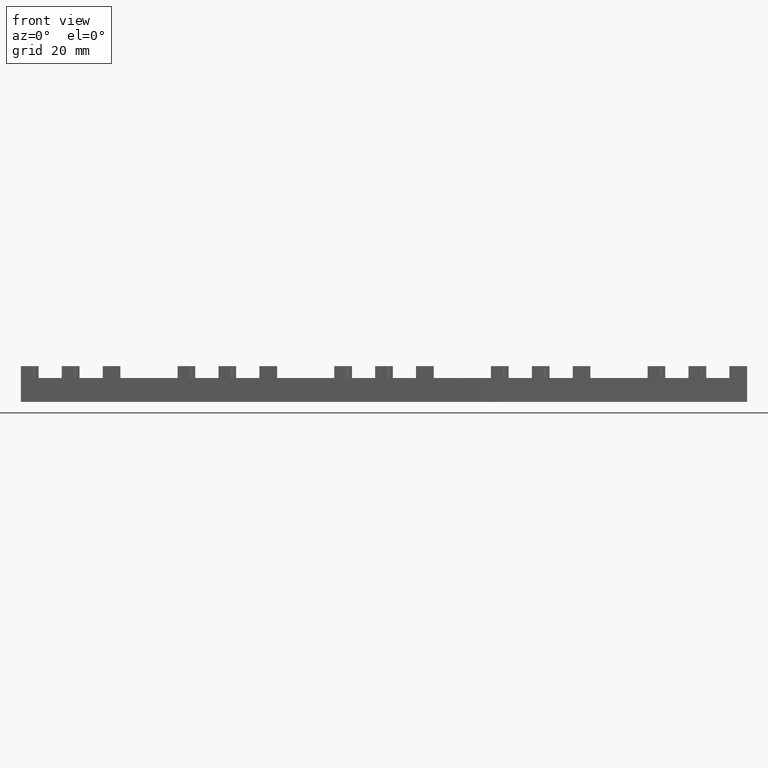
[diagram: clean part render]
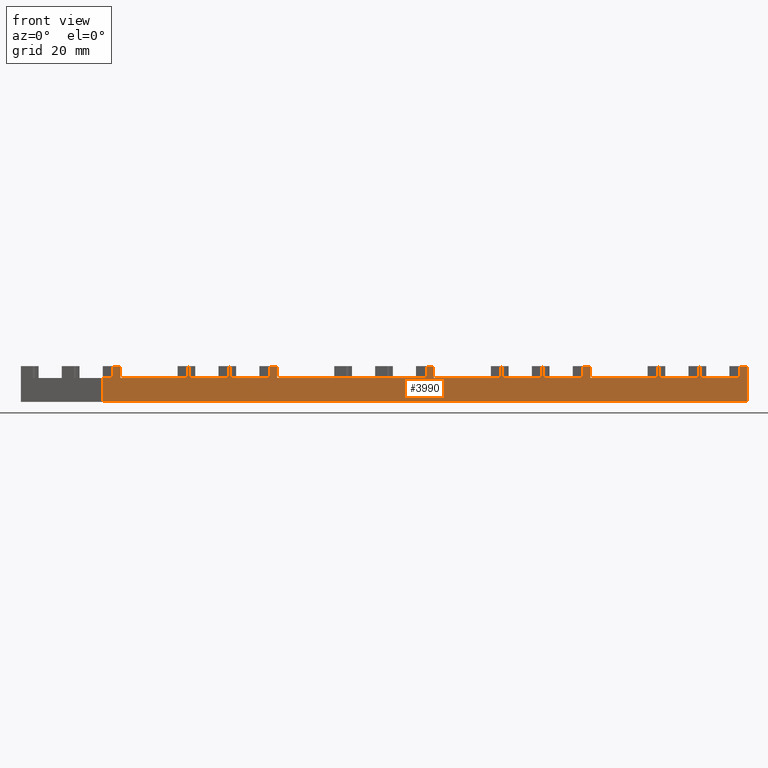
[diagram: same view with one face highlighted and labeled with its STEP entity id]
A machine part, front view. The second image highlights one B-rep face of the part: STEP entity #3990.
In plain terms, the highlighted planar face has unit normal (0, 1, 0).
Its self-contained STEP definition (entity closure, byte-faithful):
#313=CARTESIAN_POINT('',(57.499999999999893,-12.200000000000104,112.30000000000004));
#314=VERTEX_POINT('',#313);
#331=CARTESIAN_POINT('',(57.499999999999893,-12.200000000000104,108.20000000000005));
#332=VERTEX_POINT('',#331);
#339=CARTESIAN_POINT('',(57.499999999999893,-12.200000000000104,108.20000000000005));
#340=DIRECTION('',(0.0,0.0,1.0));
#341=VECTOR('',#340,4.099999999999994);
#342=LINE('',#339,#341);
#343=EDGE_CURVE('',#332,#314,#342,.T.);
#400=CARTESIAN_POINT('',(53.999999999999844,-12.200000000000049,108.20000000000005));
#401=VERTEX_POINT('',#400);
#527=CARTESIAN_POINT('',(57.999999999999901,-12.199999999999878,112.30000000000004));
#528=VERTEX_POINT('',#527);
#535=CARTESIAN_POINT('',(57.999999999999901,-12.199999999999878,108.20000000000005));
#536=VERTEX_POINT('',#535);
#537=CARTESIAN_POINT('',(57.999999999999901,-12.199999999999878,108.20000000000005));
#538=DIRECTION('',(0.0,0.0,1.0));
#539=VECTOR('',#538,4.099999999999994);
#540=LINE('',#537,#539);
#541=EDGE_CURVE('',#536,#528,#540,.T.);
#558=CARTESIAN_POINT('',(57.999999999999893,-12.199999999999877,112.30000000000004));
#559=DIRECTION('',(-1.0,-4.547474E-013,0.0));
#560=VECTOR('',#559,0.5);
#561=LINE('',#558,#560);
#562=EDGE_CURVE('',#528,#314,#561,.T.);
#585=CARTESIAN_POINT('',(53.999999999999829,-12.200000000000049,108.20000000000003));
#586=DIRECTION('',(1.0,0.0,0.0));
#587=VECTOR('',#586,3.500000000000057);
#588=LINE('',#585,#587);
#589=EDGE_CURVE('',#401,#332,#588,.T.);
#676=CARTESIAN_POINT('',(34.299999999999621,-12.20000000000792,108.20000000000005));
#677=VERTEX_POINT('',#676);
#684=CARTESIAN_POINT('',(34.299999999999613,-12.200000000000049,108.20000000000003));
#685=DIRECTION('',(1.0,0.0,0.0));
#686=VECTOR('',#685,19.700000000000216);
#687=LINE('',#684,#686);
#688=EDGE_CURVE('',#677,#401,#687,.T.);
#740=CARTESIAN_POINT('',(72.099999999999696,-12.200000000000104,112.30000000000004));
#741=VERTEX_POINT('',#740);
#748=CARTESIAN_POINT('',(72.099999999999696,-12.200000000000104,108.20000000000005));
#749=VERTEX_POINT('',#748);
#750=CARTESIAN_POINT('',(72.099999999999696,-12.200000000000104,108.20000000000005));
#751=DIRECTION('',(0.0,0.0,1.0));
#752=VECTOR('',#751,4.099999999999994);
#753=LINE('',#750,#752);
#754=EDGE_CURVE('',#749,#741,#753,.T.);
#771=CARTESIAN_POINT('',(71.599999999999923,-12.200000000000104,112.30000000000004));
#772=VERTEX_POINT('',#771);
#789=CARTESIAN_POINT('',(71.599999999999923,-12.200000000000104,108.20000000000005));
#790=VERTEX_POINT('',#789);
#797=CARTESIAN_POINT('',(71.599999999999923,-12.200000000000104,108.20000000000005));
#798=DIRECTION('',(0.0,0.0,1.0));
#799=VECTOR('',#798,4.099999999999994);
#800=LINE('',#797,#799);
#801=EDGE_CURVE('',#790,#772,#800,.T.);
#858=CARTESIAN_POINT('',(68.099999999999696,-12.200000000000049,108.20000000000005));
#859=VERTEX_POINT('',#858);
#972=CARTESIAN_POINT('',(72.099999999999696,-12.200000000000104,112.30000000000004));
#973=DIRECTION('',(-1.0,0.0,0.0));
#974=VECTOR('',#973,0.499999999999773);
#975=LINE('',#972,#974);
#976=EDGE_CURVE('',#741,#772,#975,.T.);
#987=CARTESIAN_POINT('',(68.099999999999682,-12.200000000000049,108.20000000000003));
#988=DIRECTION('',(1.0,0.0,0.0));
#989=VECTOR('',#988,3.500000000000227);
#990=LINE('',#987,#989);
#991=EDGE_CURVE('',#859,#790,#990,.T.);
#1004=CARTESIAN_POINT('',(111.49999999999991,-12.200000000000104,112.30000000000004));
#1005=VERTEX_POINT('',#1004);
#1022=CARTESIAN_POINT('',(111.49999999999991,-12.200000000000104,108.20000000000005));
#1023=VERTEX_POINT('',#1022);
#1030=CARTESIAN_POINT('',(111.49999999999991,-12.200000000000104,108.20000000000005));
#1031=DIRECTION('',(0.0,0.0,1.0));
#1032=VECTOR('',#1031,4.099999999999994);
#1033=LINE('',#1030,#1032);
#1034=EDGE_CURVE('',#1023,#1005,#1033,.T.);
#1091=CARTESIAN_POINT('',(107.99999999999984,-12.200000000000049,108.20000000000005));
#1092=VERTEX_POINT('',#1091);
#1218=CARTESIAN_POINT('',(111.9999999999999,-12.199999999999878,112.30000000000004));
#1219=VERTEX_POINT('',#1218);
#1226=CARTESIAN_POINT('',(111.9999999999999,-12.199999999999878,108.20000000000005));
#1227=VERTEX_POINT('',#1226);
#1228=CARTESIAN_POINT('',(111.9999999999999,-12.199999999999878,108.20000000000005));
#1229=DIRECTION('',(0.0,0.0,1.0));
#1230=VECTOR('',#1229,4.099999999999994);
#1231=LINE('',#1228,#1230);
#1232=EDGE_CURVE('',#1227,#1219,#1231,.T.);
#1249=CARTESIAN_POINT('',(111.99999999999991,-12.199999999999877,112.30000000000004));
#1250=DIRECTION('',(-1.0,-4.547474E-013,0.0));
#1251=VECTOR('',#1250,0.5);
#1252=LINE('',#1249,#1251);
#1253=EDGE_CURVE('',#1219,#1005,#1252,.T.);
#1276=CARTESIAN_POINT('',(107.99999999999984,-12.200000000000049,108.20000000000003));
#1277=DIRECTION('',(1.0,0.0,0.0));
#1278=VECTOR('',#1277,3.500000000000057);
#1279=LINE('',#1276,#1278);
#1280=EDGE_CURVE('',#1092,#1023,#1279,.T.);
#1294=CARTESIAN_POINT('',(57.999999999999886,-12.200000000000049,108.20000000000003));
#1295=DIRECTION('',(1.0,0.0,0.0));
#1296=VECTOR('',#1295,10.099999999999795);
#1297=LINE('',#1294,#1296);
#1298=EDGE_CURVE('',#536,#859,#1297,.T.);
#1306=CARTESIAN_POINT('',(82.199999999999591,-12.200000000000049,108.20000000000005));
#1307=VERTEX_POINT('',#1306);
#1308=CARTESIAN_POINT('',(72.099999999999682,-12.200000000000049,108.20000000000003));
#1309=DIRECTION('',(1.0,0.0,0.0));
#1310=VECTOR('',#1309,10.099999999999909);
#1311=LINE('',#1308,#1310);
#1312=EDGE_CURVE('',#749,#1307,#1311,.T.);
#1330=CARTESIAN_POINT('',(88.299999999999628,-12.20000000000792,108.20000000000005));
#1331=VERTEX_POINT('',#1330);
#1338=CARTESIAN_POINT('',(88.299999999999613,-12.200000000000049,108.20000000000003));
#1339=DIRECTION('',(1.0,0.0,0.0));
#1340=VECTOR('',#1339,19.70000000000023);
#1341=LINE('',#1338,#1340);
#1342=EDGE_CURVE('',#1331,#1092,#1341,.T.);
#1404=CARTESIAN_POINT('',(126.09999999999971,-12.200000000000104,112.30000000000004));
#1405=VERTEX_POINT('',#1404);
#1412=CARTESIAN_POINT('',(126.09999999999971,-12.200000000000104,108.20000000000005));
#1413=VERTEX_POINT('',#1412);
#1414=CARTESIAN_POINT('',(126.09999999999971,-12.200000000000104,108.20000000000005));
#1415=DIRECTION('',(0.0,0.0,1.0));
#1416=VECTOR('',#1415,4.099999999999994);
#1417=LINE('',#1414,#1416);
#1418=EDGE_CURVE('',#1413,#1405,#1417,.T.);
#1435=CARTESIAN_POINT('',(125.59999999999994,-12.200000000000104,112.30000000000004));
#1436=VERTEX_POINT('',#1435);
#1453=CARTESIAN_POINT('',(125.59999999999994,-12.200000000000104,108.20000000000005));
#1454=VERTEX_POINT('',#1453);
#1461=CARTESIAN_POINT('',(125.59999999999994,-12.200000000000104,108.20000000000005));
#1462=DIRECTION('',(0.0,0.0,1.0));
#1463=VECTOR('',#1462,4.099999999999994);
#1464=LINE('',#1461,#1463);
#1465=EDGE_CURVE('',#1454,#1436,#1464,.T.);
#1522=CARTESIAN_POINT('',(122.09999999999971,-12.200000000000049,108.20000000000005));
#1523=VERTEX_POINT('',#1522);
#1636=CARTESIAN_POINT('',(126.09999999999971,-12.200000000000104,112.30000000000004));
#1637=DIRECTION('',(-1.0,0.0,0.0));
#1638=VECTOR('',#1637,0.499999999999773);
#1639=LINE('',#1636,#1638);
#1640=EDGE_CURVE('',#1405,#1436,#1639,.T.);
#1651=CARTESIAN_POINT('',(122.0999999999997,-12.200000000000049,108.20000000000003));
#1652=DIRECTION('',(1.0,0.0,0.0));
#1653=VECTOR('',#1652,3.500000000000227);
#1654=LINE('',#1651,#1653);
#1655=EDGE_CURVE('',#1523,#1454,#1654,.T.);
#1668=CARTESIAN_POINT('',(165.49999999999994,-12.200000000000104,112.30000000000003));
#1669=VERTEX_POINT('',#1668);
#1686=CARTESIAN_POINT('',(165.49999999999994,-12.200000000000104,108.20000000000002));
#1687=VERTEX_POINT('',#1686);
#1694=CARTESIAN_POINT('',(165.49999999999994,-12.200000000000104,108.20000000000002));
#1695=DIRECTION('',(0.0,0.0,1.0));
#1696=VECTOR('',#1695,4.099999999999994);
#1697=LINE('',#1694,#1696);
#1698=EDGE_CURVE('',#1687,#1669,#1697,.T.);
#1755=CARTESIAN_POINT('',(161.99999999999986,-12.200000000000049,108.20000000000002));
#1756=VERTEX_POINT('',#1755);
#1882=CARTESIAN_POINT('',(165.99999999999991,-12.199999999999878,112.30000000000003));
#1883=VERTEX_POINT('',#1882);
#1890=CARTESIAN_POINT('',(165.99999999999991,-12.199999999999878,108.20000000000002));
#1891=VERTEX_POINT('',#1890);
#1892=CARTESIAN_POINT('',(165.99999999999991,-12.199999999999878,108.20000000000002));
#1893=DIRECTION('',(0.0,0.0,1.0));
#1894=VECTOR('',#1893,4.099999999999994);
#1895=LINE('',#1892,#1894);
#1896=EDGE_CURVE('',#1891,#1883,#1895,.T.);
#1913=CARTESIAN_POINT('',(165.99999999999994,-12.199999999999877,112.30000000000003));
#1914=DIRECTION('',(-1.0,-4.547474E-013,0.0));
#1915=VECTOR('',#1914,0.5);
#1916=LINE('',#1913,#1915);
#1917=EDGE_CURVE('',#1883,#1669,#1916,.T.);
#1940=CARTESIAN_POINT('',(161.99999999999986,-12.200000000000049,108.20000000000002));
#1941=DIRECTION('',(1.0,0.0,0.0));
#1942=VECTOR('',#1941,3.500000000000057);
#1943=LINE('',#1940,#1942);
#1944=EDGE_CURVE('',#1756,#1687,#1943,.T.);
#1958=CARTESIAN_POINT('',(111.9999999999999,-12.200000000000049,108.20000000000003));
#1959=DIRECTION('',(1.0,0.0,0.0));
#1960=VECTOR('',#1959,10.099999999999795);
#1961=LINE('',#1958,#1960);
#1962=EDGE_CURVE('',#1227,#1523,#1961,.T.);
#1970=CARTESIAN_POINT('',(136.19999999999962,-12.200000000000049,108.20000000000002));
#1971=VERTEX_POINT('',#1970);
#1972=CARTESIAN_POINT('',(126.0999999999997,-12.200000000000049,108.20000000000003));
#1973=DIRECTION('',(1.0,0.0,0.0));
#1974=VECTOR('',#1973,10.099999999999895);
#1975=LINE('',#1972,#1974);
#1976=EDGE_CURVE('',#1413,#1971,#1975,.T.);
#1994=CARTESIAN_POINT('',(142.29999999999964,-12.20000000000792,108.20000000000002));
#1995=VERTEX_POINT('',#1994);
#2002=CARTESIAN_POINT('',(142.29999999999964,-12.200000000000049,108.20000000000002));
#2003=DIRECTION('',(1.0,0.0,0.0));
#2004=VECTOR('',#2003,19.700000000000216);
#2005=LINE('',#2002,#2004);
#2006=EDGE_CURVE('',#1995,#1756,#2005,.T.);
#2068=CARTESIAN_POINT('',(180.09999999999974,-12.200000000000104,112.30000000000003));
#2069=VERTEX_POINT('',#2068);
#2076=CARTESIAN_POINT('',(180.09999999999974,-12.200000000000104,108.20000000000002));
#2077=VERTEX_POINT('',#2076);
#2078=CARTESIAN_POINT('',(180.09999999999974,-12.200000000000104,108.20000000000002));
#2079=DIRECTION('',(0.0,0.0,1.0));
#2080=VECTOR('',#2079,4.099999999999994);
#2081=LINE('',#2078,#2080);
#2082=EDGE_CURVE('',#2077,#2069,#2081,.T.);
#2099=CARTESIAN_POINT('',(179.59999999999994,-12.200000000000104,112.30000000000003));
#2100=VERTEX_POINT('',#2099);
#2117=CARTESIAN_POINT('',(179.59999999999994,-12.200000000000104,108.20000000000002));
#2118=VERTEX_POINT('',#2117);
#2125=CARTESIAN_POINT('',(179.59999999999994,-12.200000000000104,108.20000000000002));
#2126=DIRECTION('',(0.0,0.0,1.0));
#2127=VECTOR('',#2126,4.099999999999994);
#2128=LINE('',#2125,#2127);
#2129=EDGE_CURVE('',#2118,#2100,#2128,.T.);
#2186=CARTESIAN_POINT('',(176.09999999999971,-12.200000000000049,108.20000000000002));
#2187=VERTEX_POINT('',#2186);
#2300=CARTESIAN_POINT('',(180.09999999999971,-12.200000000000104,112.30000000000003));
#2301=DIRECTION('',(-1.0,0.0,0.0));
#2302=VECTOR('',#2301,0.499999999999773);
#2303=LINE('',#2300,#2302);
#2304=EDGE_CURVE('',#2069,#2100,#2303,.T.);
#2315=CARTESIAN_POINT('',(176.09999999999971,-12.200000000000049,108.20000000000002));
#2316=DIRECTION('',(1.0,0.0,0.0));
#2317=VECTOR('',#2316,3.500000000000227);
#2318=LINE('',#2315,#2317);
#2319=EDGE_CURVE('',#2187,#2118,#2318,.T.);
#2332=CARTESIAN_POINT('',(219.49999999999991,-12.200000000000104,112.30000000000003));
#2333=VERTEX_POINT('',#2332);
#2350=CARTESIAN_POINT('',(219.49999999999991,-12.200000000000104,108.20000000000002));
#2351=VERTEX_POINT('',#2350);
#2358=CARTESIAN_POINT('',(219.49999999999991,-12.200000000000104,108.20000000000002));
#2359=DIRECTION('',(0.0,0.0,1.0));
#2360=VECTOR('',#2359,4.099999999999994);
#2361=LINE('',#2358,#2360);
#2362=EDGE_CURVE('',#2351,#2333,#2361,.T.);
#2419=CARTESIAN_POINT('',(215.99999999999989,-12.200000000000049,108.20000000000002));
#2420=VERTEX_POINT('',#2419);
#2515=CARTESIAN_POINT('',(219.99999999999994,-12.199999999999878,112.30000000000003));
#2516=VERTEX_POINT('',#2515);
#2523=CARTESIAN_POINT('',(219.99999999999994,-12.199999999999878,108.20000000000002));
#2524=VERTEX_POINT('',#2523);
#2525=CARTESIAN_POINT('',(219.99999999999994,-12.199999999999878,108.20000000000002));
#2526=DIRECTION('',(0.0,0.0,1.0));
#2527=VECTOR('',#2526,4.099999999999994);
#2528=LINE('',#2525,#2527);
#2529=EDGE_CURVE('',#2524,#2516,#2528,.T.);
#2546=CARTESIAN_POINT('',(219.99999999999991,-12.199999999999877,112.30000000000003));
#2547=DIRECTION('',(-1.0,-4.547474E-013,0.0));
#2548=VECTOR('',#2547,0.5);
#2549=LINE('',#2546,#2548);
#2550=EDGE_CURVE('',#2516,#2333,#2549,.T.);
#2580=CARTESIAN_POINT('',(215.99999999999986,-12.200000000000049,108.20000000000002));
#2581=DIRECTION('',(1.0,0.0,0.0));
#2582=VECTOR('',#2581,3.500000000000057);
#2583=LINE('',#2580,#2582);
#2584=EDGE_CURVE('',#2420,#2351,#2583,.T.);
#2598=CARTESIAN_POINT('',(165.99999999999991,-12.200000000000049,108.20000000000002));
#2599=DIRECTION('',(1.0,0.0,0.0));
#2600=VECTOR('',#2599,10.099999999999795);
#2601=LINE('',#2598,#2600);
#2602=EDGE_CURVE('',#1891,#2187,#2601,.T.);
#2610=CARTESIAN_POINT('',(190.19999999999965,-12.200000000000049,108.20000000000002));
#2611=VERTEX_POINT('',#2610);
#2612=CARTESIAN_POINT('',(180.09999999999971,-12.200000000000049,108.20000000000002));
#2613=DIRECTION('',(1.0,0.0,0.0));
#2614=VECTOR('',#2613,10.099999999999909);
#2615=LINE('',#2612,#2614);
#2616=EDGE_CURVE('',#2077,#2611,#2615,.T.);
#2634=CARTESIAN_POINT('',(196.29999999999964,-12.20000000000792,108.20000000000002));
#2635=VERTEX_POINT('',#2634);
#2642=CARTESIAN_POINT('',(196.29999999999964,-12.200000000000049,108.20000000000002));
#2643=DIRECTION('',(1.0,0.0,0.0));
#2644=VECTOR('',#2643,19.700000000000216);
#2645=LINE('',#2642,#2644);
#2646=EDGE_CURVE('',#2635,#2420,#2645,.T.);
#2669=CARTESIAN_POINT('',(230.09999999999974,-12.200000000000049,108.2));
#2670=VERTEX_POINT('',#2669);
#2671=CARTESIAN_POINT('',(219.99999999999991,-12.200000000000049,108.20000000000002));
#2672=DIRECTION('',(1.0,0.0,0.0));
#2673=VECTOR('',#2672,10.099999999999795);
#2674=LINE('',#2671,#2673);
#2675=EDGE_CURVE('',#2524,#2670,#2674,.T.);
#2749=CARTESIAN_POINT('',(234.09999999999971,-12.200000000000104,112.30000000000001));
#2750=VERTEX_POINT('',#2749);
#2757=CARTESIAN_POINT('',(234.09999999999971,-12.200000000000104,108.2));
#2758=VERTEX_POINT('',#2757);
#2759=CARTESIAN_POINT('',(234.09999999999971,-12.200000000000104,108.2));
#2760=DIRECTION('',(0.0,0.0,1.0));
#2761=VECTOR('',#2760,4.099999999999994);
#2762=LINE('',#2759,#2761);
#2763=EDGE_CURVE('',#2758,#2750,#2762,.T.);
#2780=CARTESIAN_POINT('',(233.59999999999997,-12.200000000000104,112.30000000000001));
#2781=VERTEX_POINT('',#2780);
#2798=CARTESIAN_POINT('',(233.59999999999997,-12.200000000000104,108.2));
#2799=VERTEX_POINT('',#2798);
#2806=CARTESIAN_POINT('',(233.59999999999997,-12.200000000000104,108.2));
#2807=DIRECTION('',(0.0,0.0,1.0));
#2808=VECTOR('',#2807,4.099999999999994);
#2809=LINE('',#2806,#2808);
#2810=EDGE_CURVE('',#2799,#2781,#2809,.T.);
#2931=CARTESIAN_POINT('',(234.09999999999974,-12.200000000000104,112.30000000000001));
#2932=DIRECTION('',(-1.0,0.0,0.0));
#2933=VECTOR('',#2932,0.499999999999773);
#2934=LINE('',#2931,#2933);
#2935=EDGE_CURVE('',#2750,#2781,#2934,.T.);
#2946=CARTESIAN_POINT('',(230.09999999999971,-12.200000000000049,108.20000000000002));
#2947=DIRECTION('',(1.0,0.0,0.0));
#2948=VECTOR('',#2947,3.500000000000227);
#2949=LINE('',#2946,#2948);
#2950=EDGE_CURVE('',#2670,#2799,#2949,.T.);
#2966=CARTESIAN_POINT('',(244.19999999999962,-12.200000000000049,108.2));
#2967=VERTEX_POINT('',#2966);
#2968=CARTESIAN_POINT('',(234.09999999999971,-12.200000000000049,108.20000000000002));
#2969=DIRECTION('',(1.0,0.0,0.0));
#2970=VECTOR('',#2969,10.099999999999937);
#2971=LINE('',#2968,#2970);
#2972=EDGE_CURVE('',#2758,#2967,#2971,.T.);
#2996=CARTESIAN_POINT('',(247.69999999999976,-12.20000000000792,112.30000000000003));
#2997=VERTEX_POINT('',#2996);
#3014=CARTESIAN_POINT('',(247.69999999999976,-12.20000000000792,108.2));
#3015=VERTEX_POINT('',#3014);
#3022=CARTESIAN_POINT('',(247.69999999999976,-12.20000000000792,108.2));
#3023=DIRECTION('',(0.0,0.0,1.0));
#3024=VECTOR('',#3023,4.100000000000009);
#3025=LINE('',#3022,#3024);
#3026=EDGE_CURVE('',#3015,#2997,#3025,.T.);
#3108=CARTESIAN_POINT('',(250.29999999999967,-12.20000000000792,112.30000000000003));
#3109=VERTEX_POINT('',#3108);
#3110=CARTESIAN_POINT('',(250.29999999999967,-12.20000000000792,112.30000000000003));
#3111=DIRECTION('',(-1.0,0.0,0.0));
#3112=VECTOR('',#3111,2.599999999999909);
#3113=LINE('',#3110,#3112);
#3114=EDGE_CURVE('',#3109,#2997,#3113,.T.);
#3130=CARTESIAN_POINT('',(244.19999999999965,-12.200000000000049,108.20000000000002));
#3131=DIRECTION('',(1.0,0.0,0.0));
#3132=VECTOR('',#3131,3.500000000000114);
#3133=LINE('',#3130,#3132);
#3134=EDGE_CURVE('',#2967,#3015,#3133,.T.);
#3178=CARTESIAN_POINT('',(196.29999999999964,-12.20000000000792,112.30000000000003));
#3179=VERTEX_POINT('',#3178);
#3186=CARTESIAN_POINT('',(196.29999999999964,-12.20000000000792,108.20000000000002));
#3187=DIRECTION('',(0.0,0.0,1.0));
#3188=VECTOR('',#3187,4.100000000000009);
#3189=LINE('',#3186,#3188);
#3190=EDGE_CURVE('',#2635,#3179,#3189,.T.);
#3202=CARTESIAN_POINT('',(193.69999999999973,-12.20000000000792,112.30000000000003));
#3203=VERTEX_POINT('',#3202);
#3220=CARTESIAN_POINT('',(193.69999999999973,-12.20000000000792,108.20000000000002));
#3221=VERTEX_POINT('',#3220);
#3228=CARTESIAN_POINT('',(193.69999999999973,-12.20000000000792,108.20000000000002));
#3229=DIRECTION('',(0.0,0.0,1.0));
#3230=VECTOR('',#3229,4.100000000000009);
#3231=LINE('',#3228,#3230);
#3232=EDGE_CURVE('',#3221,#3203,#3231,.T.);
#3300=CARTESIAN_POINT('',(196.29999999999964,-12.20000000000792,112.30000000000003));
#3301=DIRECTION('',(-1.0,0.0,0.0));
#3302=VECTOR('',#3301,2.599999999999909);
#3303=LINE('',#3300,#3302);
#3304=EDGE_CURVE('',#3179,#3203,#3303,.T.);
#3315=CARTESIAN_POINT('',(190.19999999999962,-12.200000000000049,108.20000000000002));
#3316=DIRECTION('',(1.0,0.0,0.0));
#3317=VECTOR('',#3316,3.500000000000114);
#3318=LINE('',#3315,#3317);
#3319=EDGE_CURVE('',#2611,#3221,#3318,.T.);
#3363=CARTESIAN_POINT('',(142.29999999999964,-12.20000000000792,112.30000000000004));
#3364=VERTEX_POINT('',#3363);
#3371=CARTESIAN_POINT('',(142.29999999999964,-12.20000000000792,108.20000000000002));
#3372=DIRECTION('',(0.0,0.0,1.0));
#3373=VECTOR('',#3372,4.100000000000009);
#3374=LINE('',#3371,#3373);
#3375=EDGE_CURVE('',#1995,#3364,#3374,.T.);
#3387=CARTESIAN_POINT('',(139.69999999999973,-12.20000000000792,112.30000000000004));
#3388=VERTEX_POINT('',#3387);
#3405=CARTESIAN_POINT('',(139.69999999999973,-12.20000000000792,108.20000000000002));
#3406=VERTEX_POINT('',#3405);
#3413=CARTESIAN_POINT('',(139.69999999999973,-12.20000000000792,108.20000000000002));
#3414=DIRECTION('',(0.0,0.0,1.0));
#3415=VECTOR('',#3414,4.100000000000009);
#3416=LINE('',#3413,#3415);
#3417=EDGE_CURVE('',#3406,#3388,#3416,.T.);
#3485=CARTESIAN_POINT('',(142.29999999999964,-12.20000000000792,112.30000000000004));
#3486=DIRECTION('',(-1.0,0.0,0.0));
#3487=VECTOR('',#3486,2.599999999999909);
#3488=LINE('',#3485,#3487);
#3489=EDGE_CURVE('',#3364,#3388,#3488,.T.);
#3500=CARTESIAN_POINT('',(136.19999999999959,-12.200000000000049,108.20000000000002));
#3501=DIRECTION('',(1.0,0.0,0.0));
#3502=VECTOR('',#3501,3.500000000000114);
#3503=LINE('',#3500,#3502);
#3504=EDGE_CURVE('',#1971,#3406,#3503,.T.);
#3548=CARTESIAN_POINT('',(88.299999999999628,-12.20000000000792,112.30000000000004));
#3549=VERTEX_POINT('',#3548);
#3556=CARTESIAN_POINT('',(88.299999999999628,-12.20000000000792,108.20000000000005));
#3557=DIRECTION('',(0.0,0.0,1.0));
#3558=VECTOR('',#3557,4.100000000000009);
#3559=LINE('',#3556,#3558);
#3560=EDGE_CURVE('',#1331,#3549,#3559,.T.);
#3572=CARTESIAN_POINT('',(85.699999999999719,-12.20000000000792,112.30000000000004));
#3573=VERTEX_POINT('',#3572);
#3590=CARTESIAN_POINT('',(85.699999999999719,-12.20000000000792,108.20000000000005));
#3591=VERTEX_POINT('',#3590);
#3598=CARTESIAN_POINT('',(85.699999999999719,-12.20000000000792,108.20000000000005));
#3599=DIRECTION('',(0.0,0.0,1.0));
#3600=VECTOR('',#3599,4.100000000000009);
#3601=LINE('',#3598,#3600);
#3602=EDGE_CURVE('',#3591,#3573,#3601,.T.);
#3670=CARTESIAN_POINT('',(88.299999999999628,-12.20000000000792,112.30000000000004));
#3671=DIRECTION('',(-1.0,0.0,0.0));
#3672=VECTOR('',#3671,2.599999999999909);
#3673=LINE('',#3670,#3672);
#3674=EDGE_CURVE('',#3549,#3573,#3673,.T.);
#3685=CARTESIAN_POINT('',(82.199999999999591,-12.200000000000049,108.20000000000003));
#3686=DIRECTION('',(1.0,0.0,0.0));
#3687=VECTOR('',#3686,3.500000000000114);
#3688=LINE('',#3685,#3687);
#3689=EDGE_CURVE('',#1307,#3591,#3688,.T.);
#3733=CARTESIAN_POINT('',(34.299999999999621,-12.20000000000792,112.30000000000004));
#3734=VERTEX_POINT('',#3733);
#3741=CARTESIAN_POINT('',(34.299999999999621,-12.20000000000792,108.20000000000005));
#3742=DIRECTION('',(0.0,0.0,1.0));
#3743=VECTOR('',#3742,4.100000000000009);
#3744=LINE('',#3741,#3743);
#3745=EDGE_CURVE('',#677,#3734,#3744,.T.);
#3757=CARTESIAN_POINT('',(31.699999999999712,-12.20000000000792,112.30000000000004));
#3758=VERTEX_POINT('',#3757);
#3775=CARTESIAN_POINT('',(31.699999999999712,-12.20000000000792,108.20000000000005));
#3776=VERTEX_POINT('',#3775);
#3783=CARTESIAN_POINT('',(31.699999999999712,-12.20000000000792,108.20000000000005));
#3784=DIRECTION('',(0.0,0.0,1.0));
#3785=VECTOR('',#3784,4.100000000000009);
#3786=LINE('',#3783,#3785);
#3787=EDGE_CURVE('',#3776,#3758,#3786,.T.);
#3837=CARTESIAN_POINT('',(34.299999999999621,-12.20000000000792,112.30000000000004));
#3838=DIRECTION('',(-1.0,0.0,0.0));
#3839=VECTOR('',#3838,2.599999999999909);
#3840=LINE('',#3837,#3839);
#3841=EDGE_CURVE('',#3734,#3758,#3840,.T.);
#3852=CARTESIAN_POINT('',(28.199999999999594,-12.200000000000049,108.20000000000005));
#3853=VERTEX_POINT('',#3852);
#3854=CARTESIAN_POINT('',(28.199999999999591,-12.200000000000049,108.20000000000003));
#3855=DIRECTION('',(1.0,0.0,0.0));
#3856=VECTOR('',#3855,3.500000000000114);
#3857=LINE('',#3854,#3856);
#3858=EDGE_CURVE('',#3853,#3776,#3857,.T.);
#3884=CARTESIAN_POINT('',(28.199999999999594,-12.200000000000049,100.00000000000003));
#3885=VERTEX_POINT('',#3884);
#3892=CARTESIAN_POINT('',(28.199999999999594,-12.200000000000049,108.20000000000005));
#3893=DIRECTION('',(0.0,0.0,-1.0));
#3894=VECTOR('',#3893,8.200000000000003);
#3895=LINE('',#3892,#3894);
#3896=EDGE_CURVE('',#3853,#3885,#3895,.T.);
#3905=CARTESIAN_POINT('',(98.149999999999608,-12.200000000000049,104.10000000000004));
#3906=DIRECTION('',(0.0,1.0,0.0));
#3907=DIRECTION('',(0.0,0.0,1.0));
#3908=AXIS2_PLACEMENT_3D('',#3905,#3906,#3907);
#3909=PLANE('',#3908);
#3910=ORIENTED_EDGE('',*,*,#3896,.T.);
#3911=CARTESIAN_POINT('',(250.29999999999967,-12.200000000000049,100.0));
#3912=VERTEX_POINT('',#3911);
#3913=CARTESIAN_POINT('',(250.29999999999967,-12.200000000000049,100.0));
#3914=DIRECTION('',(-1.0,0.0,0.0));
#3915=VECTOR('',#3914,222.10000000000008);
#3916=LINE('',#3913,#3915);
#3917=EDGE_CURVE('',#3912,#3885,#3916,.T.);
#3918=ORIENTED_EDGE('',*,*,#3917,.F.);
#3919=CARTESIAN_POINT('',(250.29999999999967,-12.200000000000049,112.30000000000001));
#3920=DIRECTION('',(0.0,0.0,-1.0));
#3921=VECTOR('',#3920,12.300000000000011);
#3922=LINE('',#3919,#3921);
#3923=EDGE_CURVE('',#3109,#3912,#3922,.T.);
#3924=ORIENTED_EDGE('',*,*,#3923,.F.);
#3925=ORIENTED_EDGE('',*,*,#3114,.T.);
#3926=ORIENTED_EDGE('',*,*,#3026,.F.);
#3927=ORIENTED_EDGE('',*,*,#3134,.F.);
#3928=ORIENTED_EDGE('',*,*,#2972,.F.);
#3929=ORIENTED_EDGE('',*,*,#2763,.T.);
#3930=ORIENTED_EDGE('',*,*,#2935,.T.);
#3931=ORIENTED_EDGE('',*,*,#2810,.F.);
#3932=ORIENTED_EDGE('',*,*,#2950,.F.);
#3933=ORIENTED_EDGE('',*,*,#2675,.F.);
#3934=ORIENTED_EDGE('',*,*,#2529,.T.);
#3935=ORIENTED_EDGE('',*,*,#2550,.T.);
#3936=ORIENTED_EDGE('',*,*,#2362,.F.);
#3937=ORIENTED_EDGE('',*,*,#2584,.F.);
#3938=ORIENTED_EDGE('',*,*,#2646,.F.);
#3939=ORIENTED_EDGE('',*,*,#3190,.T.);
#3940=ORIENTED_EDGE('',*,*,#3304,.T.);
#3941=ORIENTED_EDGE('',*,*,#3232,.F.);
#3942=ORIENTED_EDGE('',*,*,#3319,.F.);
#3943=ORIENTED_EDGE('',*,*,#2616,.F.);
#3944=ORIENTED_EDGE('',*,*,#2082,.T.);
#3945=ORIENTED_EDGE('',*,*,#2304,.T.);
#3946=ORIENTED_EDGE('',*,*,#2129,.F.);
#3947=ORIENTED_EDGE('',*,*,#2319,.F.);
#3948=ORIENTED_EDGE('',*,*,#2602,.F.);
#3949=ORIENTED_EDGE('',*,*,#1896,.T.);
#3950=ORIENTED_EDGE('',*,*,#1917,.T.);
#3951=ORIENTED_EDGE('',*,*,#1698,.F.);
#3952=ORIENTED_EDGE('',*,*,#1944,.F.);
#3953=ORIENTED_EDGE('',*,*,#2006,.F.);
#3954=ORIENTED_EDGE('',*,*,#3375,.T.);
#3955=ORIENTED_EDGE('',*,*,#3489,.T.);
#3956=ORIENTED_EDGE('',*,*,#3417,.F.);
#3957=ORIENTED_EDGE('',*,*,#3504,.F.);
#3958=ORIENTED_EDGE('',*,*,#1976,.F.);
#3959=ORIENTED_EDGE('',*,*,#1418,.T.);
#3960=ORIENTED_EDGE('',*,*,#1640,.T.);
#3961=ORIENTED_EDGE('',*,*,#1465,.F.);
#3962=ORIENTED_EDGE('',*,*,#1655,.F.);
#3963=ORIENTED_EDGE('',*,*,#1962,.F.);
#3964=ORIENTED_EDGE('',*,*,#1232,.T.);
#3965=ORIENTED_EDGE('',*,*,#1253,.T.);
#3966=ORIENTED_EDGE('',*,*,#1034,.F.);
#3967=ORIENTED_EDGE('',*,*,#1280,.F.);
#3968=ORIENTED_EDGE('',*,*,#1342,.F.);
#3969=ORIENTED_EDGE('',*,*,#3560,.T.);
#3970=ORIENTED_EDGE('',*,*,#3674,.T.);
#3971=ORIENTED_EDGE('',*,*,#3602,.F.);
#3972=ORIENTED_EDGE('',*,*,#3689,.F.);
#3973=ORIENTED_EDGE('',*,*,#1312,.F.);
#3974=ORIENTED_EDGE('',*,*,#754,.T.);
#3975=ORIENTED_EDGE('',*,*,#976,.T.);
#3976=ORIENTED_EDGE('',*,*,#801,.F.);
#3977=ORIENTED_EDGE('',*,*,#991,.F.);
#3978=ORIENTED_EDGE('',*,*,#1298,.F.);
#3979=ORIENTED_EDGE('',*,*,#541,.T.);
#3980=ORIENTED_EDGE('',*,*,#562,.T.);
#3981=ORIENTED_EDGE('',*,*,#343,.F.);
#3982=ORIENTED_EDGE('',*,*,#589,.F.);
#3983=ORIENTED_EDGE('',*,*,#688,.F.);
#3984=ORIENTED_EDGE('',*,*,#3745,.T.);
#3985=ORIENTED_EDGE('',*,*,#3841,.T.);
#3986=ORIENTED_EDGE('',*,*,#3787,.F.);
#3987=ORIENTED_EDGE('',*,*,#3858,.F.);
#3988=EDGE_LOOP('',(#3910,#3918,#3924,#3925,#3926,#3927,#3928,#3929,#3930,#3931,#3932,#3933,#3934,#3935,#3936,#3937,#3938,#3939,#3940,#3941,#3942,#3943,#3944,#3945,#3946,#3947,#3948,#3949,#3950,#3951,#3952,#3953,#3954,#3955,#3956,#3957,#3958,#3959,#3960,#3961,#3962,#3963,#3964,#3965,#3966,#3967,#3968,#3969,#3970,#3971,#3972,#3973,#3974,#3975,#3976,#3977,#3978,#3979,#3980,#3981,#3982,#3983,#3984,#3985,#3986,#3987));
#3989=FACE_OUTER_BOUND('',#3988,.T.);
#3990=ADVANCED_FACE('',(#3989),#3909,.F.);